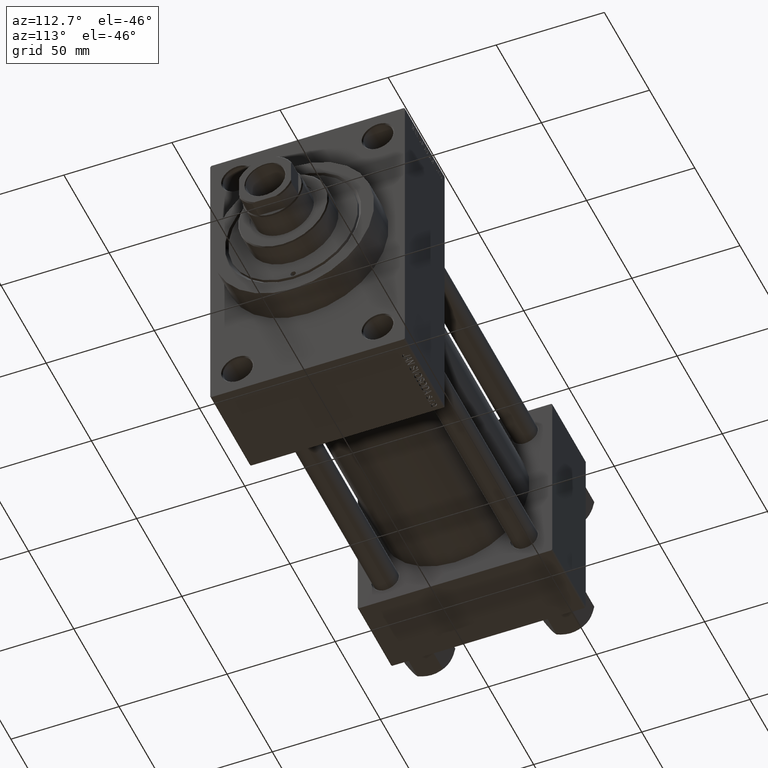
[diagram: clean part render]
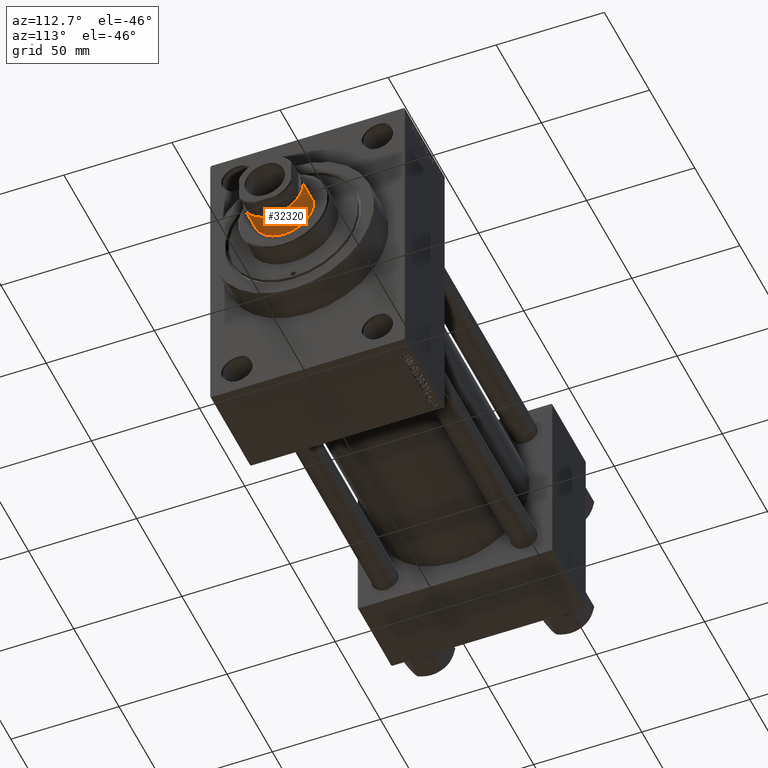
[diagram: same view with one face highlighted and labeled with its STEP entity id]
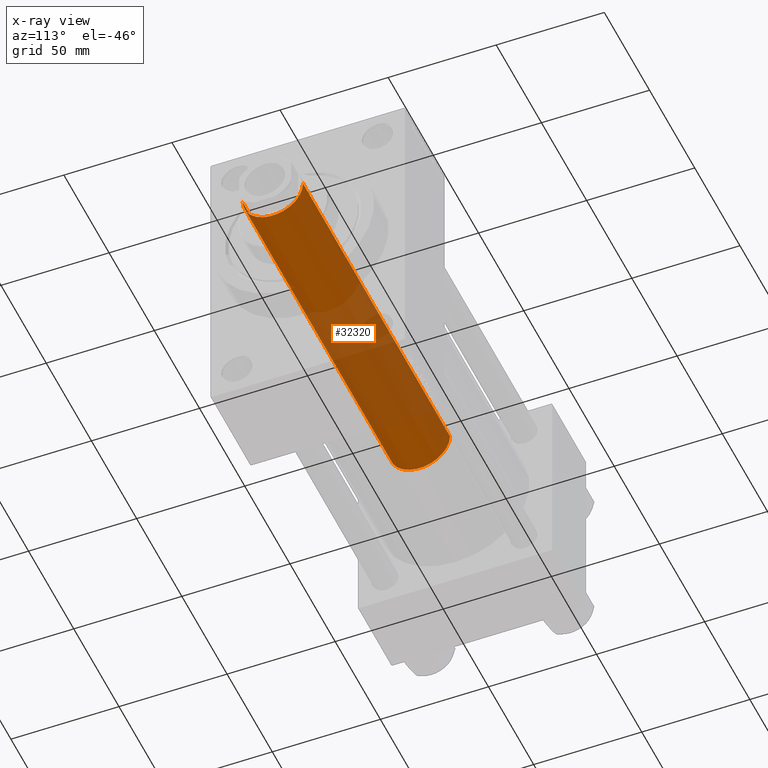
[diagram: x-ray of the same camera — body ghosted, the highlighted face saturated]
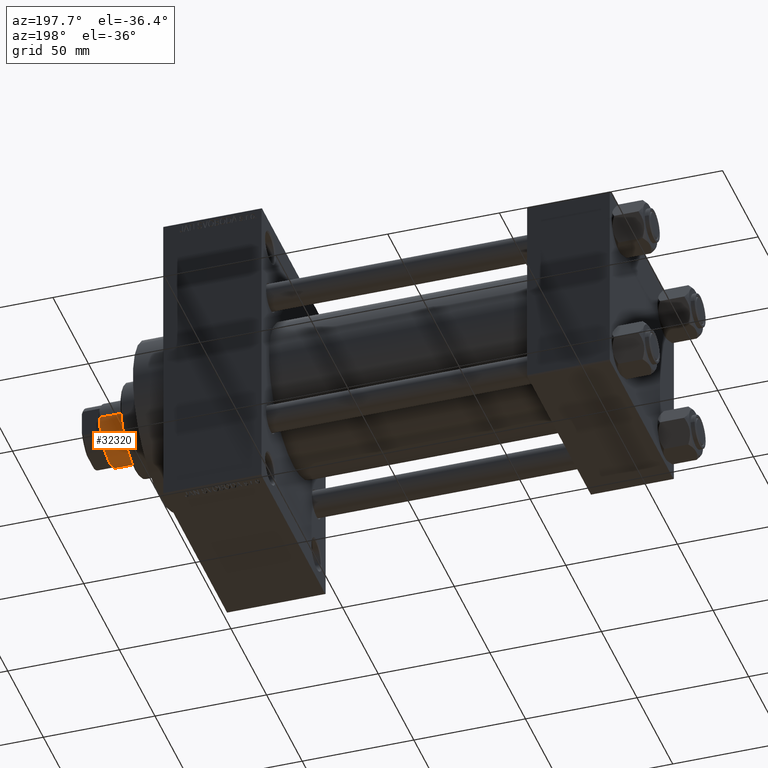
[diagram: same view with one face highlighted and labeled with its STEP entity id]
A machine part, auxiliary view. The second image highlights one B-rep face of the part: STEP entity #32320.
The next image is the same camera in x-ray: the body ghosted, the highlighted face saturated — about 49% of this face is hidden behind the body in this view.
A second angle (auxiliary view) of the same face is appended — the face is thin or edge-on in the first view.
In plain terms, the highlighted cylindrical surface (edge-blend (fillet) strip) has radius 14 mm, axis along (-1, 0, 0).
Its self-contained STEP definition (entity closure, byte-faithful):
#266 = LINE ( 'NONE', #35782, #2744 ) ;
#601 = CARTESIAN_POINT ( 'NONE',  ( 14.00000000000000178, 1.714505518806294835E-15, 39.00000000000000000 ) ) ;
#1034 = CARTESIAN_POINT ( 'NONE',  ( -14.00000000000000178, 0.000000000000000000, 201.5000000000000284 ) ) ;
#2744 = VECTOR ( 'NONE', #21655, 1000.000000000000000 ) ;
#3180 = VERTEX_POINT ( 'NONE', #601 ) ;
#4530 = VERTEX_POINT ( 'NONE', #1034 ) ;
#5918 = CARTESIAN_POINT ( 'NONE',  ( 0.000000000000000000, 0.000000000000000000, 202.0000000000000000 ) ) ;
#6893 = EDGE_CURVE ( 'NONE', #36813, #3180, #19380, .T. ) ;
#8076 = ORIENTED_EDGE ( 'NONE', *, *, #6893, .T. ) ;
#8378 = CARTESIAN_POINT ( 'NONE',  ( -14.00000000000000178, 0.000000000000000000, 39.00000000000000000 ) ) ;
#10632 = AXIS2_PLACEMENT_3D ( 'NONE', #18667, #23207, #22253 ) ;
#15208 = DIRECTION ( 'NONE',  ( 0.000000000000000000, 0.000000000000000000, -1.000000000000000000 ) ) ;
#16495 = EDGE_CURVE ( 'NONE', #4530, #36813, #27978, .T. ) ;
#16815 = ORIENTED_EDGE ( 'NONE', *, *, #19733, .T. ) ;
#17095 = CARTESIAN_POINT ( 'NONE',  ( 14.00000000000000178, 1.714505518806294835E-15, 201.5000000000000284 ) ) ;
#17200 = DIRECTION ( 'NONE',  ( -0.000000000000000000, -0.000000000000000000, -1.000000000000000000 ) ) ;
#17241 = EDGE_CURVE ( 'NONE', #4530, #21629, #266, .T. ) ;
#17844 = AXIS2_PLACEMENT_3D ( 'NONE', #5918, #17200, #35648 ) ;
#18667 = CARTESIAN_POINT ( 'NONE',  ( 0.000000000000000000, 0.000000000000000000, 39.00000000000000000 ) ) ;
#19380 = LINE ( 'NONE', #37110, #45266 ) ;
#19733 = EDGE_CURVE ( 'NONE', #3180, #21629, #42763, .T. ) ;
#19754 = CARTESIAN_POINT ( 'NONE',  ( 0.000000000000000000, 0.000000000000000000, 201.5000000000000284 ) ) ;
#21629 = VERTEX_POINT ( 'NONE', #8378 ) ;
#21655 = DIRECTION ( 'NONE',  ( -0.000000000000000000, -0.000000000000000000, -1.000000000000000000 ) ) ;
#22253 = DIRECTION ( 'NONE',  ( 1.000000000000000000, 0.000000000000000000, 0.000000000000000000 ) ) ;
#23207 = DIRECTION ( 'NONE',  ( 0.000000000000000000, 0.000000000000000000, 1.000000000000000000 ) ) ;
#24398 = FACE_OUTER_BOUND ( 'NONE', #33869, .T. ) ;
#26015 = ORIENTED_EDGE ( 'NONE', *, *, #17241, .F. ) ;
#27978 = CIRCLE ( 'NONE', #29530, 14.00000000000000178 ) ;
#28365 = ORIENTED_EDGE ( 'NONE', *, *, #16495, .T. ) ;
#29460 = DIRECTION ( 'NONE',  ( -0.000000000000000000, -0.000000000000000000, -1.000000000000000000 ) ) ;
#29530 = AXIS2_PLACEMENT_3D ( 'NONE', #19754, #15208, #41090 ) ;
#32320 = ADVANCED_FACE ( 'NONE', ( #24398 ), #38992, .T. ) ;
#33869 = EDGE_LOOP ( 'NONE', ( #28365, #8076, #16815, #26015 ) ) ;
#35648 = DIRECTION ( 'NONE',  ( -1.000000000000000000, 0.000000000000000000, 0.000000000000000000 ) ) ;
#35782 = CARTESIAN_POINT ( 'NONE',  ( -14.00000000000000178, 0.000000000000000000, 202.0000000000000000 ) ) ;
#36813 = VERTEX_POINT ( 'NONE', #17095 ) ;
#37110 = CARTESIAN_POINT ( 'NONE',  ( 14.00000000000000178, 1.714505518806294835E-15, 202.0000000000000000 ) ) ;
#38992 = CYLINDRICAL_SURFACE ( 'NONE', #17844, 14.00000000000000178 ) ;
#41090 = DIRECTION ( 'NONE',  ( 1.000000000000000000, 0.000000000000000000, 0.000000000000000000 ) ) ;
#42763 = CIRCLE ( 'NONE', #10632, 14.00000000000000178 ) ;
#45266 = VECTOR ( 'NONE', #29460, 1000.000000000000000 ) ;